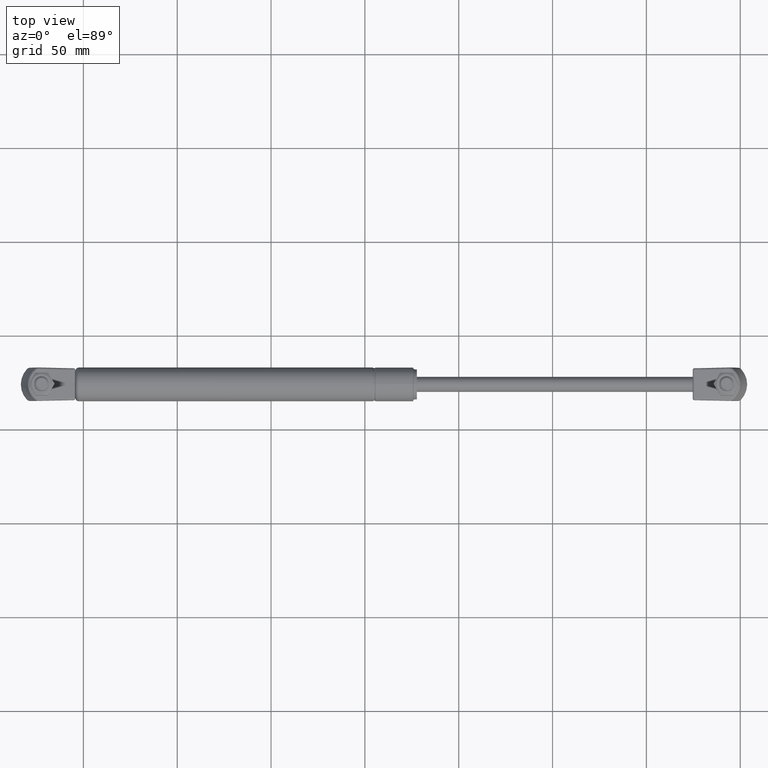
[diagram: clean part render]
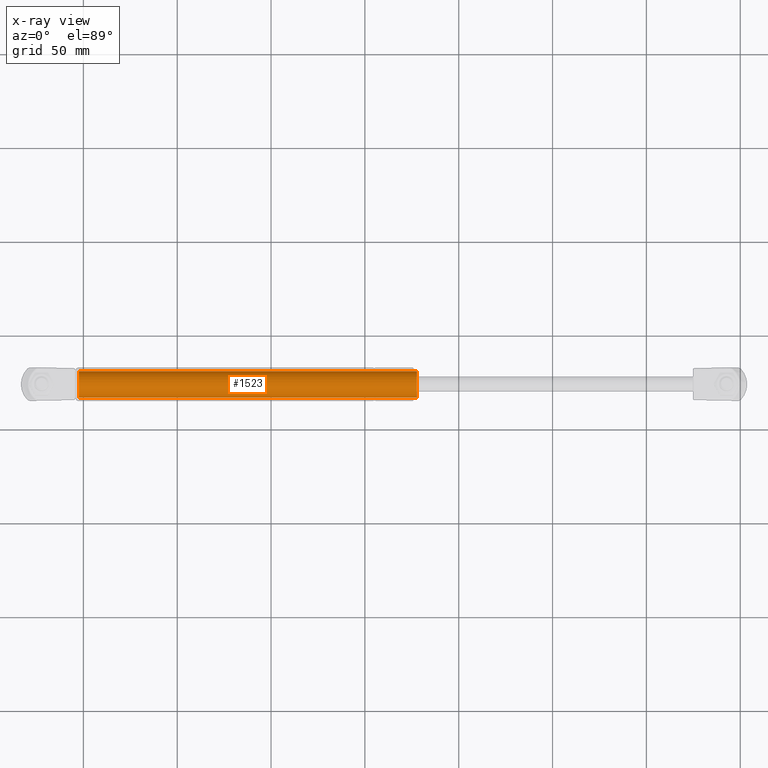
[diagram: x-ray — body ghosted, one internal face saturated and labeled with its STEP entity id]
A machine part, top view, then the same camera in x-ray: the body is ghosted and one INTERNAL B-rep face — a face not visible from any outside direction — is saturated and labeled: STEP entity #1523.
In plain terms, the highlighted cylindrical surface (bore or boss wall) has radius 7 mm, axis along (1, -0, 0).
Its self-contained STEP definition (entity closure, byte-faithful):
#345=CYLINDRICAL_SURFACE('',#1646,7.);
#370=FACE_BOUND('',#520,.T.);
#405=FACE_OUTER_BOUND('',#519,.T.);
#519=EDGE_LOOP('',(#1097));
#520=EDGE_LOOP('',(#1098));
#652=CIRCLE('',#1644,7.);
#654=CIRCLE('',#1647,7.);
#724=VERTEX_POINT('',#2208);
#726=VERTEX_POINT('',#2213);
#874=EDGE_CURVE('',#724,#724,#652,.F.);
#876=EDGE_CURVE('',#726,#726,#654,.T.);
#1097=ORIENTED_EDGE('',*,*,#874,.F.);
#1098=ORIENTED_EDGE('',*,*,#876,.F.);
#1523=ADVANCED_FACE('',(#405,#370),#345,.F.);
#1644=AXIS2_PLACEMENT_3D('',#2209,#1829,#1830);
#1646=AXIS2_PLACEMENT_3D('',#2212,#1833,#1834);
#1647=AXIS2_PLACEMENT_3D('',#2214,#1835,#1836);
#1829=DIRECTION('center_axis',(-1.,2.16720028906871E-32,0.));
#1830=DIRECTION('ref_axis',(0.,1.,0.));
#1833=DIRECTION('center_axis',(1.,-2.16720028906871E-32,0.));
#1834=DIRECTION('ref_axis',(0.,1.,0.));
#1835=DIRECTION('center_axis',(-1.,2.16720028906871E-32,0.));
#1836=DIRECTION('ref_axis',(0.,1.,0.));
#2208=CARTESIAN_POINT('',(1.99999999999999,-7.,8.57252759403147E-16));
#2209=CARTESIAN_POINT('Origin',(1.99999999999999,-4.33440057813741E-32,
0.));
#2212=CARTESIAN_POINT('Origin',(91.,-1.97215226305253E-30,0.));
#2213=CARTESIAN_POINT('',(182.,-7.,8.57252759403147E-16));
#2214=CARTESIAN_POINT('Origin',(182.,-3.94430452610506E-30,0.));